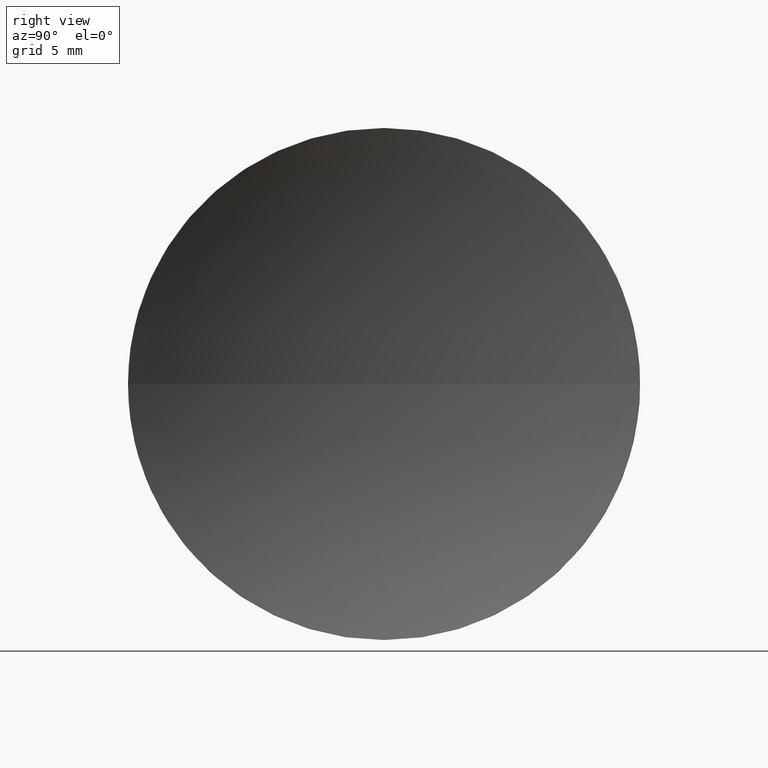
[diagram: clean part render]
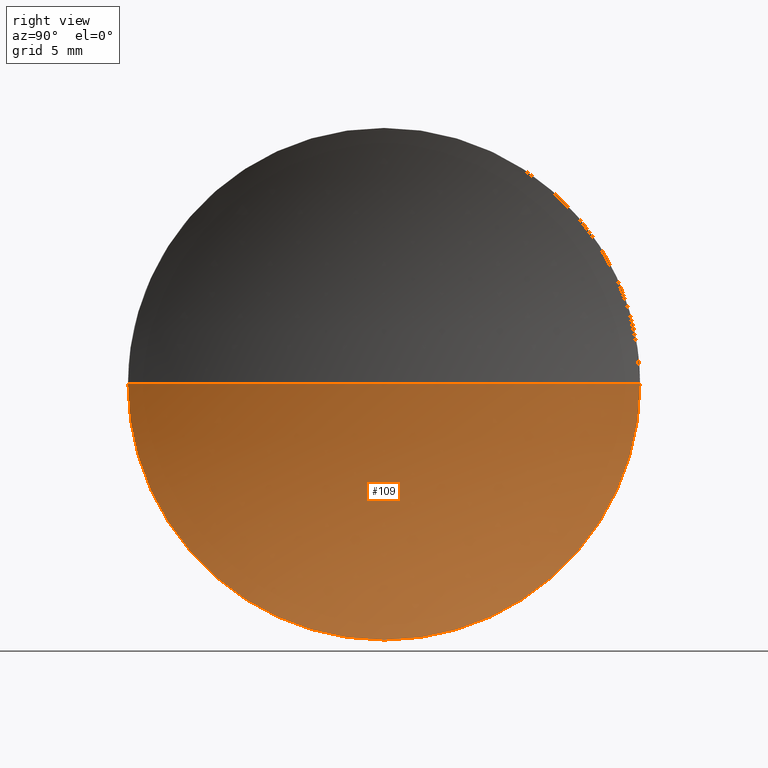
[diagram: same view with one face highlighted and labeled with its STEP entity id]
A machine part, right view. The second image highlights one B-rep face of the part: STEP entity #109.
In plain terms, the highlighted spherical surface has radius 32.5 mm.
Its self-contained STEP definition (entity closure, byte-faithful):
#2 = DIRECTION ( 'NONE',  ( 0.0000000000000000000, -1.000000000000000000, 0.0000000000000000000 ) ) ;
#3 = DIRECTION ( 'NONE',  ( -1.000000000000000000, 0.0000000000000000000, 0.0000000000000000000 ) ) ;
#11 = DIRECTION ( 'NONE',  ( -1.000000000000000000, -0.0000000000000000000, -0.0000000000000000000 ) ) ;
#13 = DIRECTION ( 'NONE',  ( 0.0000000000000000000, 0.0000000000000000000, 1.000000000000000000 ) ) ;
#16 = CARTESIAN_POINT ( 'NONE',  ( 124.5909521089847200, 71.19398908659370300, -12.70000000000001500 ) ) ;
#17 = CARTESIAN_POINT ( 'NONE',  ( 154.5068341785477100, 71.19398908659371700, 0.0000000000000000000 ) ) ;
#20 = ORIENTED_EDGE ( 'NONE', *, *, #22, .F. ) ;
#22 = EDGE_CURVE ( 'NONE', #178, #125, #82, .T. ) ;
#24 = CARTESIAN_POINT ( 'NONE',  ( 124.5909521089847200, 71.19398908659370300, 0.0000000000000000000 ) ) ;
#28 = DIRECTION ( 'NONE',  ( 0.0000000000000000000, 0.0000000000000000000, 1.000000000000000000 ) ) ;
#31 = AXIS2_PLACEMENT_3D ( 'NONE', #17, #126, #3 ) ;
#34 = EDGE_CURVE ( 'NONE', #125, #147, #101, .T. ) ;
#38 = DIRECTION ( 'NONE',  ( 0.0000000000000000000, 0.0000000000000000000, 1.000000000000000000 ) ) ;
#44 = SPHERICAL_SURFACE ( 'NONE', #122, 32.50000000000000000 ) ;
#52 = CARTESIAN_POINT ( 'NONE',  ( 154.5068341785477100, 71.19398908659371700, 0.0000000000000000000 ) ) ;
#54 = ORIENTED_EDGE ( 'NONE', *, *, #34, .F. ) ;
#57 = DIRECTION ( 'NONE',  ( 0.0000000000000000000, -1.000000000000000000, -1.224646799147353500E-016 ) ) ;
#69 = AXIS2_PLACEMENT_3D ( 'NONE', #24, #141, #13 ) ;
#70 = VERTEX_POINT ( 'NONE', #143 ) ;
#75 = DIRECTION ( 'NONE',  ( 0.0000000000000000000, -1.224646799147353200E-016, 1.000000000000000000 ) ) ;
#80 = AXIS2_PLACEMENT_3D ( 'NONE', #99, #11, #38 ) ;
#82 = CIRCLE ( 'NONE', #69, 12.70000000000001700 ) ;
#98 = ORIENTED_EDGE ( 'NONE', *, *, #112, .F. ) ;
#99 = CARTESIAN_POINT ( 'NONE',  ( 124.5909521089847200, 71.19398908659370300, 0.0000000000000000000 ) ) ;
#101 = CIRCLE ( 'NONE', #80, 12.70000000000001700 ) ;
#102 = CARTESIAN_POINT ( 'NONE',  ( 124.5909521089847200, 83.89398908659372000, 1.555301434917138800E-015 ) ) ;
#109 = ADVANCED_FACE ( 'NONE', ( #179 ), #44, .F. ) ;
#112 = EDGE_CURVE ( 'NONE', #147, #70, #142, .T. ) ;
#122 = AXIS2_PLACEMENT_3D ( 'NONE', #52, #28, #2 ) ;
#125 = VERTEX_POINT ( 'NONE', #16 ) ;
#126 = DIRECTION ( 'NONE',  ( 0.0000000000000000000, 0.0000000000000000000, -1.000000000000000000 ) ) ;
#128 = CARTESIAN_POINT ( 'NONE',  ( 124.5909521089847200, 58.49398908659370000, 0.0000000000000000000 ) ) ;
#129 = CIRCLE ( 'NONE', #155, 32.50000000000000000 ) ;
#141 = DIRECTION ( 'NONE',  ( -1.000000000000000000, -0.0000000000000000000, -0.0000000000000000000 ) ) ;
#142 = CIRCLE ( 'NONE', #31, 32.50000000000000000 ) ;
#143 = CARTESIAN_POINT ( 'NONE',  ( 122.0068341785477100, 71.19398908659371700, 0.0000000000000000000 ) ) ;
#147 = VERTEX_POINT ( 'NONE', #128 ) ;
#149 = CARTESIAN_POINT ( 'NONE',  ( 154.5068341785477100, 71.19398908659371700, 0.0000000000000000000 ) ) ;
#155 = AXIS2_PLACEMENT_3D ( 'NONE', #149, #75, #57 ) ;
#160 = EDGE_CURVE ( 'NONE', #178, #70, #129, .T. ) ;
#163 = EDGE_LOOP ( 'NONE', ( #20, #171, #98, #54 ) ) ;
#171 = ORIENTED_EDGE ( 'NONE', *, *, #160, .T. ) ;
#178 = VERTEX_POINT ( 'NONE', #102 ) ;
#179 = FACE_OUTER_BOUND ( 'NONE', #163, .T. ) ;